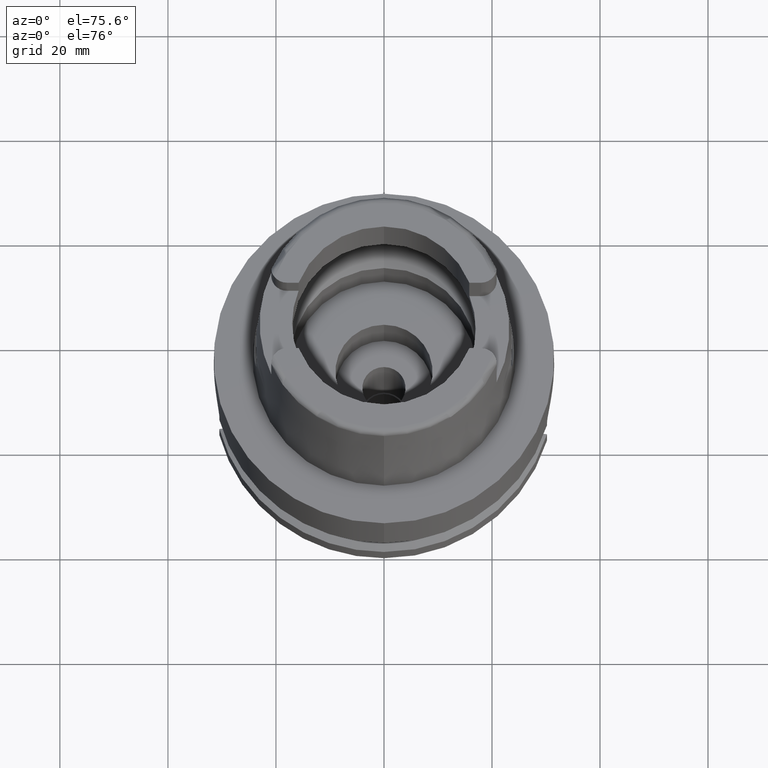
[diagram: clean part render]
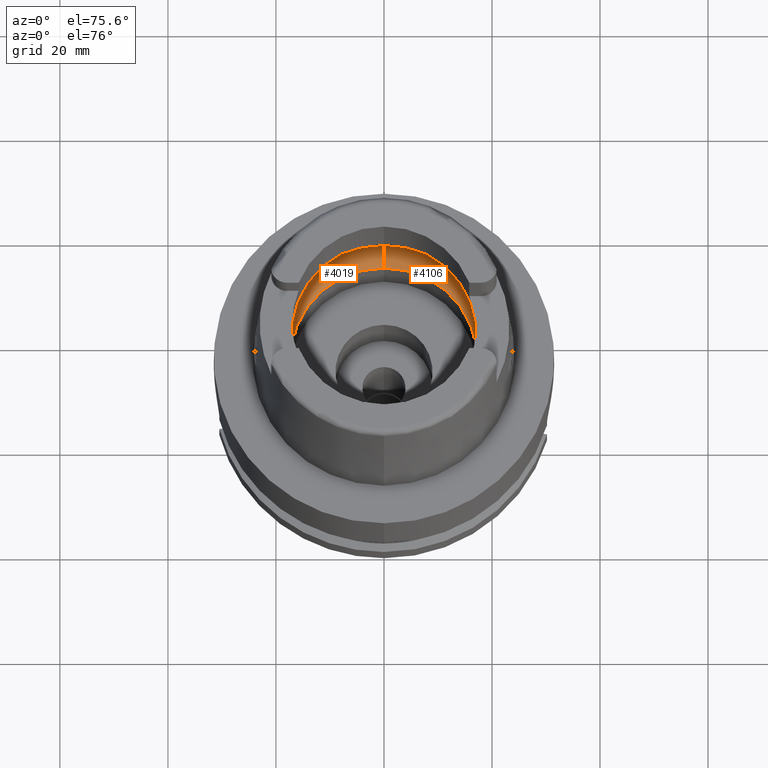
[diagram: same view with one multi-face feature highlighted, each face labeled with its STEP entity id]
A machine part, auxiliary view. The highlighted faces form ONE feature: a constant-radius fillet chain: 2 tangent blend faces with common blend radius 8 mm. The faces share edges in the B-rep.
Their STEP definitions:
[1] entity #4106 (Torus):
#2041=CARTESIAN_POINT('',(0.E0,-1.2E1,6.186348233825E0));
#2042=DIRECTION('',(-1.E0,0.E0,0.E0));
#2043=DIRECTION('',(0.E0,-6.5625E-1,-7.545435292281E-1));
#2044=AXIS2_PLACEMENT_3D('',#2041,#2042,#2043);
#2105=CARTESIAN_POINT('',(1.984575864666E1,-2.479085262491E0,6.186348233825E0));
#2134=CARTESIAN_POINT('',(1.984575864666E1,2.479085262491E0,6.186348233825E0));
#2153=CARTESIAN_POINT('',(1.994501428476E1,0.E0,5.25E0));
#2154=CARTESIAN_POINT('',(1.994501428476E1,-3.022109186395E-1,5.25E0));
#2155=CARTESIAN_POINT('',(1.994018886112E1,-9.058486760299E-1,
5.323260138817E0));
#2156=CARTESIAN_POINT('',(1.991332874853E1,-1.758885968800E0,5.646923075843E0));
#2157=CARTESIAN_POINT('',(1.987370755586E1,-2.255346565443E0,5.989213921339E0));
#2158=CARTESIAN_POINT('',(1.984575864666E1,-2.479085262491E0,6.186348233825E0));
#2163=CARTESIAN_POINT('',(0.E0,0.E0,6.186348233825E0));
#2164=DIRECTION('',(0.E0,0.E0,-1.E0));
#2165=DIRECTION('',(9.922879323328E-1,-1.239542631245E-1,0.E0));
#2166=AXIS2_PLACEMENT_3D('',#2163,#2164,#2165);
#2171=CARTESIAN_POINT('',(0.E0,0.E0,1.500000000001E-1));
#2172=DIRECTION('',(0.E0,0.E0,1.E0));
#2173=DIRECTION('',(0.E0,-1.E0,0.E0));
#2174=AXIS2_PLACEMENT_3D('',#2171,#2172,#2173);
#2179=CARTESIAN_POINT('',(0.E0,1.2E1,6.186348233825E0));
#2180=DIRECTION('',(1.E0,0.E0,0.E0));
#2181=DIRECTION('',(0.E0,6.5625E-1,-7.545435292281E-1));
#2182=AXIS2_PLACEMENT_3D('',#2179,#2180,#2181);
#2187=CARTESIAN_POINT('',(0.E0,0.E0,6.186348233825E0));
#2188=DIRECTION('',(0.E0,0.E0,-1.E0));
#2189=DIRECTION('',(0.E0,1.E0,0.E0));
#2190=AXIS2_PLACEMENT_3D('',#2187,#2188,#2189);
#2195=CARTESIAN_POINT('',(1.984575864666E1,2.479085262491E0,6.186348233825E0));
#2196=CARTESIAN_POINT('',(1.987368643270E1,2.255515662166E0,5.989362911061E0));
#2197=CARTESIAN_POINT('',(1.991331478515E1,1.759372479806E0,5.647100706603E0));
#2198=CARTESIAN_POINT('',(1.994021001664E1,9.049929042927E-1,5.322991861201E0));
#2199=CARTESIAN_POINT('',(1.994501428476E1,3.018227137309E-1,5.25E0));
#2200=CARTESIAN_POINT('',(1.994501428476E1,0.E0,5.25E0));
#2360=CARTESIAN_POINT('',(0.E0,-2.E1,6.186348233825E0));
#2361=VERTEX_POINT('',#2360);
#2362=CARTESIAN_POINT('',(0.E0,2.E1,6.186348233825E0));
#2363=VERTEX_POINT('',#2362);
#2368=VERTEX_POINT('',#2105);
#2370=VERTEX_POINT('',#2153);
#2371=VERTEX_POINT('',#2134);
#2372=CARTESIAN_POINT('',(0.E0,1.725E1,1.500000000001E-1));
#2373=VERTEX_POINT('',#2372);
#2374=CARTESIAN_POINT('',(0.E0,-1.725E1,1.500000000001E-1));
#2375=VERTEX_POINT('',#2374);
#4091=CARTESIAN_POINT('',(0.E0,0.E0,6.186348233825E0));
#4092=DIRECTION('',(0.E0,0.E0,1.E0));
#4093=DIRECTION('',(0.E0,1.E0,0.E0));
#4094=AXIS2_PLACEMENT_3D('',#4091,#4092,#4093);
#4095=TOROIDAL_SURFACE('',#4094,1.2E1,8.E0);
#4096=ORIENTED_EDGE('',*,*,#4081,.T.);
#4097=ORIENTED_EDGE('',*,*,#4070,.T.);
#4098=ORIENTED_EDGE('',*,*,#4013,.F.);
#4099=ORIENTED_EDGE('',*,*,#3978,.T.);
#4100=ORIENTED_EDGE('',*,*,#4010,.T.);
#4101=ORIENTED_EDGE('',*,*,#4064,.T.);
#4103=ORIENTED_EDGE('',*,*,#4102,.T.);
#4104=EDGE_LOOP('',(#4096,#4097,#4098,#4099,#4100,#4101,#4103));
#4105=FACE_OUTER_BOUND('',#4104,.F.);
#2045=CIRCLE('',#2044,8.E0);
#2159=B_SPLINE_CURVE_WITH_KNOTS('',3,(#2153,#2154,#2155,#2156,#2157,#2158),
.UNSPECIFIED.,.F.,.F.,(4,1,1,4),(0.E0,3.333333333333E-1,6.666666666667E-1,1.E0),
.UNSPECIFIED.);
#2167=CIRCLE('',#2166,2.E1);
#2175=CIRCLE('',#2174,1.725E1);
#2183=CIRCLE('',#2182,8.E0);
#2191=CIRCLE('',#2190,2.E1);
#2201=B_SPLINE_CURVE_WITH_KNOTS('',3,(#2195,#2196,#2197,#2198,#2199,#2200),
.UNSPECIFIED.,.F.,.F.,(4,1,1,4),(0.E0,3.333333333333E-1,6.666666666667E-1,1.E0),
.UNSPECIFIED.);
#3978=EDGE_CURVE('',#2375,#2373,#2175,.T.);
#4010=EDGE_CURVE('',#2373,#2363,#2183,.T.);
#4013=EDGE_CURVE('',#2375,#2361,#2045,.T.);
#4064=EDGE_CURVE('',#2363,#2371,#2191,.T.);
#4070=EDGE_CURVE('',#2368,#2361,#2167,.T.);
#4081=EDGE_CURVE('',#2370,#2368,#2159,.T.);
#4102=EDGE_CURVE('',#2371,#2370,#2201,.T.);
#4106=ADVANCED_FACE('',(#4105),#4095,.F.);
[2] entity #4019 (Torus):
#2005=CARTESIAN_POINT('',(-1.984575864666E1,-2.479085262491E0,
6.186348233825E0));
#2006=CARTESIAN_POINT('',(-1.987370771882E1,-2.255345260874E0,
5.989212771894E0));
#2007=CARTESIAN_POINT('',(-1.991332895189E1,-1.758882382518E0,
5.646921041047E0));
#2008=CARTESIAN_POINT('',(-1.994018891292E1,-9.058447440112E-1,
5.323259319607E0));
#2009=CARTESIAN_POINT('',(-1.994501428476E1,-3.022092202537E-1,5.25E0));
#2010=CARTESIAN_POINT('',(-1.994501428476E1,0.E0,5.25E0));
#2015=CARTESIAN_POINT('',(-1.994501428476E1,0.E0,5.25E0));
#2016=CARTESIAN_POINT('',(-1.994501428476E1,3.017705594142E-1,5.25E0));
#2017=CARTESIAN_POINT('',(-1.994021317006E1,9.048795061496E-1,
5.322952856700E0));
#2018=CARTESIAN_POINT('',(-1.991331073282E1,1.759485649844E0,5.647148099887E0));
#2019=CARTESIAN_POINT('',(-1.987368145844E1,2.255555482443E0,5.989397996377E0));
#2020=CARTESIAN_POINT('',(-1.984575864666E1,2.479085262491E0,6.186348233825E0));
#2025=CARTESIAN_POINT('',(0.E0,0.E0,6.186348233825E0));
#2026=DIRECTION('',(0.E0,0.E0,-1.E0));
#2027=DIRECTION('',(-9.922879323328E-1,1.239542631245E-1,0.E0));
#2028=AXIS2_PLACEMENT_3D('',#2025,#2026,#2027);
#2033=CARTESIAN_POINT('',(0.E0,0.E0,1.500000000001E-1));
#2034=DIRECTION('',(0.E0,0.E0,1.E0));
#2035=DIRECTION('',(0.E0,1.E0,0.E0));
#2036=AXIS2_PLACEMENT_3D('',#2033,#2034,#2035);
#2041=CARTESIAN_POINT('',(0.E0,-1.2E1,6.186348233825E0));
#2042=DIRECTION('',(-1.E0,0.E0,0.E0));
#2043=DIRECTION('',(0.E0,-6.5625E-1,-7.545435292281E-1));
#2044=AXIS2_PLACEMENT_3D('',#2041,#2042,#2043);
#2049=CARTESIAN_POINT('',(0.E0,0.E0,6.186348233825E0));
#2050=DIRECTION('',(0.E0,0.E0,-1.E0));
#2051=DIRECTION('',(0.E0,-1.E0,0.E0));
#2052=AXIS2_PLACEMENT_3D('',#2049,#2050,#2051);
#2076=CARTESIAN_POINT('',(-1.984575864666E1,-2.479085262491E0,
6.186348233825E0));
#2179=CARTESIAN_POINT('',(0.E0,1.2E1,6.186348233825E0));
#2180=DIRECTION('',(1.E0,0.E0,0.E0));
#2181=DIRECTION('',(0.E0,6.5625E-1,-7.545435292281E-1));
#2182=AXIS2_PLACEMENT_3D('',#2179,#2180,#2181);
#2359=VERTEX_POINT('',#2076);
#2360=CARTESIAN_POINT('',(0.E0,-2.E1,6.186348233825E0));
#2361=VERTEX_POINT('',#2360);
#2362=CARTESIAN_POINT('',(0.E0,2.E1,6.186348233825E0));
#2363=VERTEX_POINT('',#2362);
#2364=CARTESIAN_POINT('',(-1.984575864666E1,2.479085262490E0,6.186348233825E0));
#2365=VERTEX_POINT('',#2364);
#2366=CARTESIAN_POINT('',(-1.994501428476E1,0.E0,5.25E0));
#2367=VERTEX_POINT('',#2366);
#2372=CARTESIAN_POINT('',(0.E0,1.725E1,1.500000000001E-1));
#2373=VERTEX_POINT('',#2372);
#2374=CARTESIAN_POINT('',(0.E0,-1.725E1,1.500000000001E-1));
#2375=VERTEX_POINT('',#2374);
#3999=CARTESIAN_POINT('',(0.E0,0.E0,6.186348233825E0));
#4000=DIRECTION('',(0.E0,0.E0,1.E0));
#4001=DIRECTION('',(0.E0,1.E0,0.E0));
#4002=AXIS2_PLACEMENT_3D('',#3999,#4000,#4001);
#4003=TOROIDAL_SURFACE('',#4002,1.2E1,8.E0);
#4005=ORIENTED_EDGE('',*,*,#4004,.T.);
#4007=ORIENTED_EDGE('',*,*,#4006,.T.);
#4009=ORIENTED_EDGE('',*,*,#4008,.T.);
#4011=ORIENTED_EDGE('',*,*,#4010,.F.);
#4012=ORIENTED_EDGE('',*,*,#3994,.T.);
#4014=ORIENTED_EDGE('',*,*,#4013,.T.);
#4016=ORIENTED_EDGE('',*,*,#4015,.T.);
#4017=EDGE_LOOP('',(#4005,#4007,#4009,#4011,#4012,#4014,#4016));
#4018=FACE_OUTER_BOUND('',#4017,.F.);
#2011=B_SPLINE_CURVE_WITH_KNOTS('',3,(#2005,#2006,#2007,#2008,#2009,#2010),
.UNSPECIFIED.,.F.,.F.,(4,1,1,4),(0.E0,3.333333333333E-1,6.666666666667E-1,1.E0),
.UNSPECIFIED.);
#2021=B_SPLINE_CURVE_WITH_KNOTS('',3,(#2015,#2016,#2017,#2018,#2019,#2020),
.UNSPECIFIED.,.F.,.F.,(4,1,1,4),(0.E0,3.333333333333E-1,6.666666666667E-1,1.E0),
.UNSPECIFIED.);
#2029=CIRCLE('',#2028,2.E1);
#2037=CIRCLE('',#2036,1.725E1);
#2045=CIRCLE('',#2044,8.E0);
#2053=CIRCLE('',#2052,2.E1);
#2183=CIRCLE('',#2182,8.E0);
#3994=EDGE_CURVE('',#2373,#2375,#2037,.T.);
#4004=EDGE_CURVE('',#2359,#2367,#2011,.T.);
#4006=EDGE_CURVE('',#2367,#2365,#2021,.T.);
#4008=EDGE_CURVE('',#2365,#2363,#2029,.T.);
#4010=EDGE_CURVE('',#2373,#2363,#2183,.T.);
#4013=EDGE_CURVE('',#2375,#2361,#2045,.T.);
#4015=EDGE_CURVE('',#2361,#2359,#2053,.T.);
#4019=ADVANCED_FACE('',(#4018),#4003,.F.);